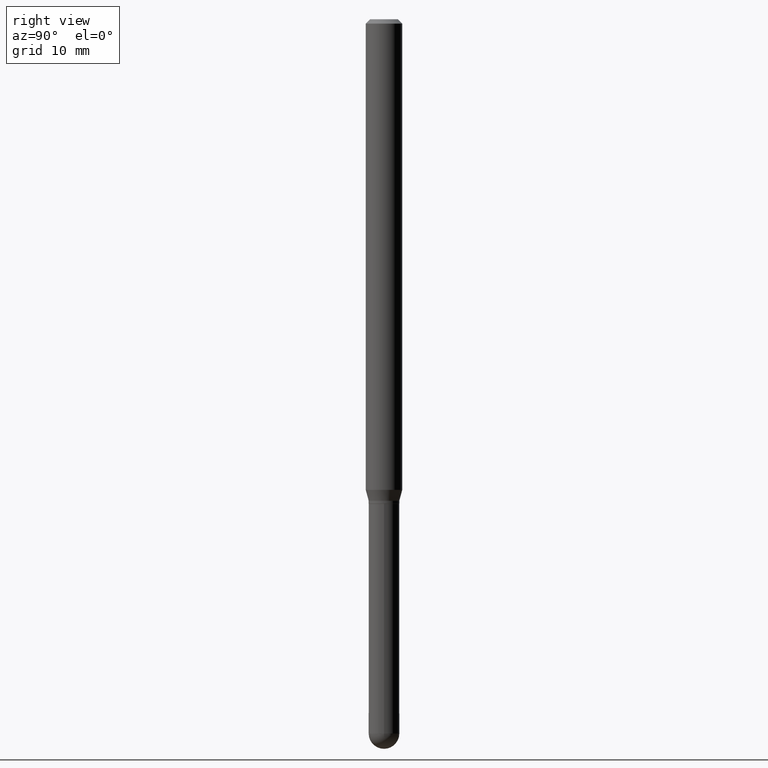
[diagram: clean part render]
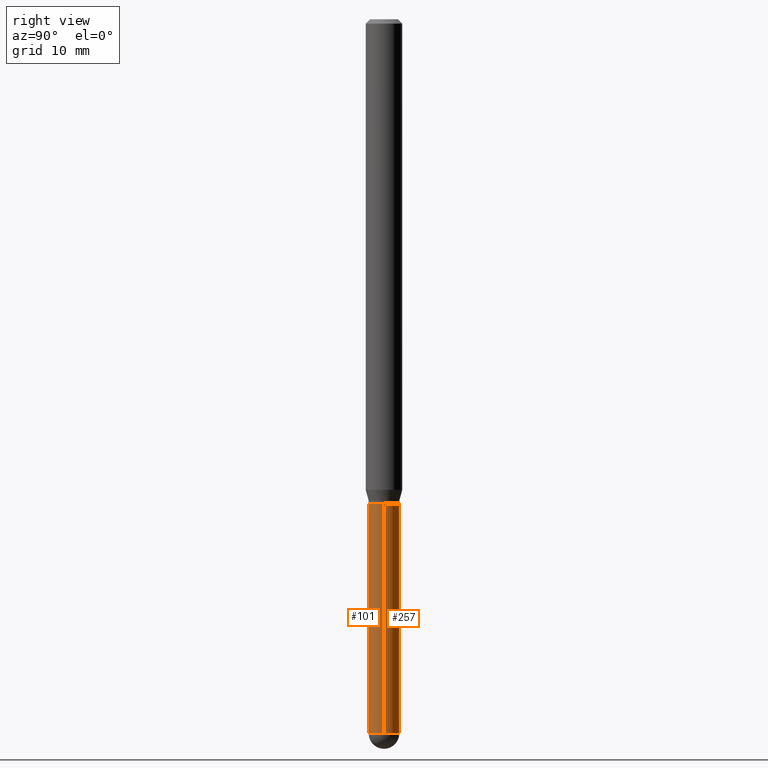
[diagram: same view with one multi-face feature highlighted, each face labeled with its STEP entity id]
A machine part, right view. The highlighted faces form ONE feature: a constant-radius fillet chain: 2 tangent blend faces with common blend radius 1.3335 mm. The faces share edges in the B-rep.
Their STEP definitions:
[1] entity #257 (Cylinder):
#14 = VERTEX_POINT ( 'NONE', #297 ) ;
#40 = VECTOR ( 'NONE', #495, 39.37007874015748143 ) ;
#49 = CYLINDRICAL_SURFACE ( 'NONE', #89, 0.05249999999999999806 ) ;
#52 = EDGE_CURVE ( 'NONE', #262, #408, #212, .T. ) ;
#78 = ORIENTED_EDGE ( 'NONE', *, *, #307, .F. ) ;
#85 = CARTESIAN_POINT ( 'NONE',  ( -0.05249999999999999806, -6.797594863375057759E-15, -2.447500000000000231 ) ) ;
#86 = ORIENTED_EDGE ( 'NONE', *, *, #398, .T. ) ;
#87 = DIRECTION ( 'NONE',  ( 1.000000000000000000, -6.982962677686265922E-15, 4.876176775795935232E-29 ) ) ;
#89 = AXIS2_PLACEMENT_3D ( 'NONE', #207, #366, #87 ) ;
#90 = AXIS2_PLACEMENT_3D ( 'NONE', #337, #216, #377 ) ;
#96 = LINE ( 'NONE', #205, #357 ) ;
#102 = ORIENTED_EDGE ( 'NONE', *, *, #52, .T. ) ;
#110 = CIRCLE ( 'NONE', #90, 0.05249999999999999806 ) ;
#119 = CARTESIAN_POINT ( 'NONE',  ( 4.059478218267327378E-29, -5.795859022479622985E-15, -1.660000000000000364 ) ) ;
#121 = DIRECTION ( 'NONE',  ( -2.445468806185136877E-29, 3.491481338843145188E-15, 1.000000000000000000 ) ) ;
#123 = ORIENTED_EDGE ( 'NONE', *, *, #293, .T. ) ;
#131 = DIRECTION ( 'NONE',  ( -2.445468806185136597E-29, 3.491481338843145583E-15, 1.000000000000000000 ) ) ;
#176 = AXIS2_PLACEMENT_3D ( 'NONE', #197, #131, #454 ) ;
#197 = CARTESIAN_POINT ( 'NONE',  ( 5.985284903138122000E-29, -8.545400576818598390E-15, -2.447500000000000231 ) ) ;
#201 = FACE_OUTER_BOUND ( 'NONE', #487, .T. ) ;
#205 = CARTESIAN_POINT ( 'NONE',  ( 0.05249999999999999806, -3.666055405785289629E-16, 2.559992807292866011E-30 ) ) ;
#207 = CARTESIAN_POINT ( 'NONE',  ( 0.000000000000000000, 0.000000000000000000, 0.000000000000000000 ) ) ;
#210 = VERTEX_POINT ( 'NONE', #267 ) ;
#212 = LINE ( 'NONE', #502, #40 ) ;
#213 = DIRECTION ( 'NONE',  ( -2.445468806185136597E-29, 3.491481338843145583E-15, 1.000000000000000000 ) ) ;
#216 = DIRECTION ( 'NONE',  ( -2.445468806185136597E-29, 3.491481338843145583E-15, 1.000000000000000000 ) ) ;
#241 = ORIENTED_EDGE ( 'NONE', *, *, #260, .F. ) ;
#244 = DIRECTION ( 'NONE',  ( 1.000000000000000000, -6.982962677686268288E-15, 0.000000000000000000 ) ) ;
#246 = AXIS2_PLACEMENT_3D ( 'NONE', #119, #213, #244 ) ;
#257 = ADVANCED_FACE ( 'NONE', ( #201 ), #49, .T. ) ;
#260 = EDGE_CURVE ( 'NONE', #497, #408, #485, .T. ) ;
#262 = VERTEX_POINT ( 'NONE', #85 ) ;
#267 = CARTESIAN_POINT ( 'NONE',  ( 0.05249999999999999806, -7.537235340227639453E-15, -2.447500000000000231 ) ) ;
#293 = EDGE_CURVE ( 'NONE', #14, #262, #309, .T. ) ;
#297 = CARTESIAN_POINT ( 'NONE',  ( 3.666055405785888670E-16, 0.05249999999999146322, -2.447500000000000231 ) ) ;
#307 = EDGE_CURVE ( 'NONE', #210, #497, #96, .T. ) ;
#309 = CIRCLE ( 'NONE', #176, 0.05249999999999999806 ) ;
#337 = CARTESIAN_POINT ( 'NONE',  ( 5.985284903138122000E-29, -8.545400576818598390E-15, -2.447500000000000231 ) ) ;
#357 = VECTOR ( 'NONE', #121, 39.37007874015748143 ) ;
#366 = DIRECTION ( 'NONE',  ( -2.445468806185136597E-29, 3.491481338843145583E-15, 1.000000000000000000 ) ) ;
#377 = DIRECTION ( 'NONE',  ( 1.000000000000000000, -6.982962677686250144E-15, 0.000000000000000000 ) ) ;
#398 = EDGE_CURVE ( 'NONE', #210, #14, #110, .T. ) ;
#402 = CARTESIAN_POINT ( 'NONE',  ( 0.05249999999999999806, -6.162464563058152145E-15, -1.660000000000000364 ) ) ;
#408 = VERTEX_POINT ( 'NONE', #510 ) ;
#454 = DIRECTION ( 'NONE',  ( 1.000000000000000000, -6.982962677686250144E-15, 0.000000000000000000 ) ) ;
#485 = CIRCLE ( 'NONE', #246, 0.05249999999999999806 ) ;
#487 = EDGE_LOOP ( 'NONE', ( #123, #102, #241, #78, #86 ) ) ;
#495 = DIRECTION ( 'NONE',  ( -2.445468806185136877E-29, 3.491481338843145188E-15, 1.000000000000000000 ) ) ;
#497 = VERTEX_POINT ( 'NONE', #402 ) ;
#502 = CARTESIAN_POINT ( 'NONE',  ( -0.05249999999999999806, 3.730349362740525838E-16, -2.582440922383825311E-30 ) ) ;
#510 = CARTESIAN_POINT ( 'NONE',  ( -0.05249999999999999806, -6.797594863375057759E-15, -1.660000000000000364 ) ) ;
[2] entity #101 (Cylinder):
#25 = AXIS2_PLACEMENT_3D ( 'NONE', #235, #160, #489 ) ;
#38 = FACE_OUTER_BOUND ( 'NONE', #334, .T. ) ;
#40 = VECTOR ( 'NONE', #495, 39.37007874015748143 ) ;
#52 = EDGE_CURVE ( 'NONE', #262, #408, #212, .T. ) ;
#54 = ORIENTED_EDGE ( 'NONE', *, *, #312, .F. ) ;
#85 = CARTESIAN_POINT ( 'NONE',  ( -0.05249999999999999806, -6.797594863375057759E-15, -2.447500000000000231 ) ) ;
#93 = DIRECTION ( 'NONE',  ( -2.445468806185136597E-29, 3.491481338843145583E-15, 1.000000000000000000 ) ) ;
#96 = LINE ( 'NONE', #205, #357 ) ;
#101 = ADVANCED_FACE ( 'NONE', ( #38 ), #222, .T. ) ;
#111 = DIRECTION ( 'NONE',  ( 1.000000000000000000, -6.982962677686265922E-15, 4.876176775795935232E-29 ) ) ;
#121 = DIRECTION ( 'NONE',  ( -2.445468806185136877E-29, 3.491481338843145188E-15, 1.000000000000000000 ) ) ;
#153 = CARTESIAN_POINT ( 'NONE',  ( 0.000000000000000000, 0.000000000000000000, 0.000000000000000000 ) ) ;
#160 = DIRECTION ( 'NONE',  ( -2.445468806185136597E-29, 3.491481338843145583E-15, 1.000000000000000000 ) ) ;
#177 = CARTESIAN_POINT ( 'NONE',  ( 5.985284903138122000E-29, -8.545400576818598390E-15, -2.447500000000000231 ) ) ;
#198 = AXIS2_PLACEMENT_3D ( 'NONE', #153, #358, #111 ) ;
#205 = CARTESIAN_POINT ( 'NONE',  ( 0.05249999999999999806, -3.666055405785289629E-16, 2.559992807292866011E-30 ) ) ;
#210 = VERTEX_POINT ( 'NONE', #267 ) ;
#212 = LINE ( 'NONE', #502, #40 ) ;
#220 = VERTEX_POINT ( 'NONE', #444 ) ;
#222 = CYLINDRICAL_SURFACE ( 'NONE', #198, 0.05249999999999999806 ) ;
#235 = CARTESIAN_POINT ( 'NONE',  ( 5.985284903138122000E-29, -8.545400576818598390E-15, -2.447500000000000231 ) ) ;
#237 = CIRCLE ( 'NONE', #25, 0.05249999999999999806 ) ;
#238 = ORIENTED_EDGE ( 'NONE', *, *, #276, .T. ) ;
#247 = CIRCLE ( 'NONE', #327, 0.05249999999999999806 ) ;
#262 = VERTEX_POINT ( 'NONE', #85 ) ;
#267 = CARTESIAN_POINT ( 'NONE',  ( 0.05249999999999999806, -7.537235340227639453E-15, -2.447500000000000231 ) ) ;
#276 = EDGE_CURVE ( 'NONE', #220, #210, #237, .T. ) ;
#301 = CIRCLE ( 'NONE', #392, 0.05249999999999999806 ) ;
#307 = EDGE_CURVE ( 'NONE', #210, #497, #96, .T. ) ;
#312 = EDGE_CURVE ( 'NONE', #408, #497, #247, .T. ) ;
#327 = AXIS2_PLACEMENT_3D ( 'NONE', #405, #93, #364 ) ;
#334 = EDGE_LOOP ( 'NONE', ( #409, #379, #238, #383, #54 ) ) ;
#344 = DIRECTION ( 'NONE',  ( -2.445468806185136597E-29, 3.491481338843145583E-15, 1.000000000000000000 ) ) ;
#357 = VECTOR ( 'NONE', #121, 39.37007874015748143 ) ;
#358 = DIRECTION ( 'NONE',  ( -2.445468806185136597E-29, 3.491481338843145583E-15, 1.000000000000000000 ) ) ;
#364 = DIRECTION ( 'NONE',  ( 1.000000000000000000, -6.982962677686268288E-15, 0.000000000000000000 ) ) ;
#378 = EDGE_CURVE ( 'NONE', #262, #220, #301, .T. ) ;
#379 = ORIENTED_EDGE ( 'NONE', *, *, #378, .T. ) ;
#383 = ORIENTED_EDGE ( 'NONE', *, *, #307, .T. ) ;
#392 = AXIS2_PLACEMENT_3D ( 'NONE', #177, #344, #423 ) ;
#402 = CARTESIAN_POINT ( 'NONE',  ( 0.05249999999999999806, -6.162464563058152145E-15, -1.660000000000000364 ) ) ;
#405 = CARTESIAN_POINT ( 'NONE',  ( 4.059478218267327378E-29, -5.795859022479622985E-15, -1.660000000000000364 ) ) ;
#408 = VERTEX_POINT ( 'NONE', #510 ) ;
#409 = ORIENTED_EDGE ( 'NONE', *, *, #52, .F. ) ;
#423 = DIRECTION ( 'NONE',  ( 1.000000000000000000, -6.982962677686250144E-15, 0.000000000000000000 ) ) ;
#444 = CARTESIAN_POINT ( 'NONE',  ( -3.730349362739928276E-16, -0.05250000000000856065, -2.447499999999999787 ) ) ;
#489 = DIRECTION ( 'NONE',  ( 1.000000000000000000, -6.982962677686250144E-15, 0.000000000000000000 ) ) ;
#495 = DIRECTION ( 'NONE',  ( -2.445468806185136877E-29, 3.491481338843145188E-15, 1.000000000000000000 ) ) ;
#497 = VERTEX_POINT ( 'NONE', #402 ) ;
#502 = CARTESIAN_POINT ( 'NONE',  ( -0.05249999999999999806, 3.730349362740525838E-16, -2.582440922383825311E-30 ) ) ;
#510 = CARTESIAN_POINT ( 'NONE',  ( -0.05249999999999999806, -6.797594863375057759E-15, -1.660000000000000364 ) ) ;